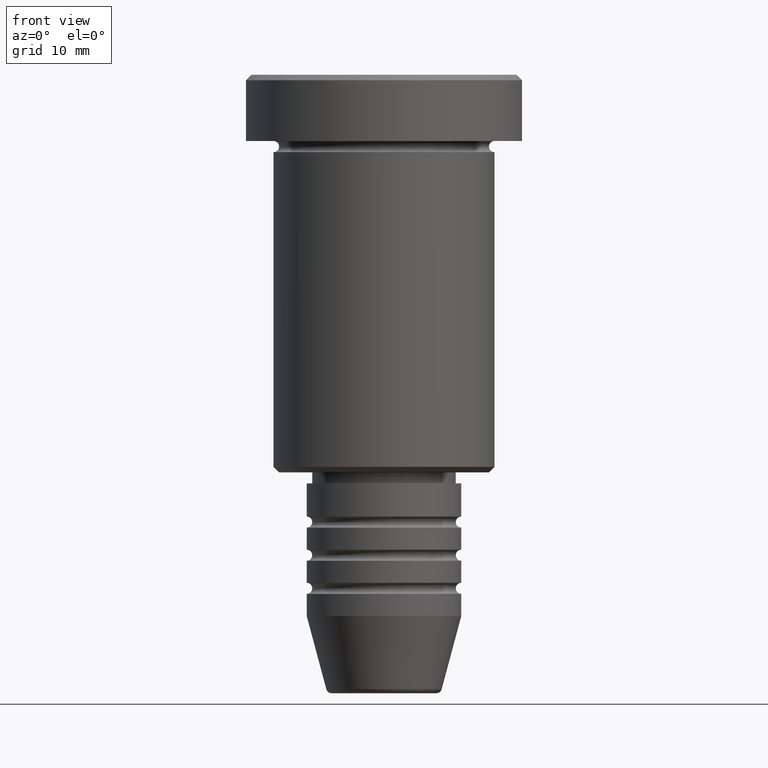
[diagram: clean part render]
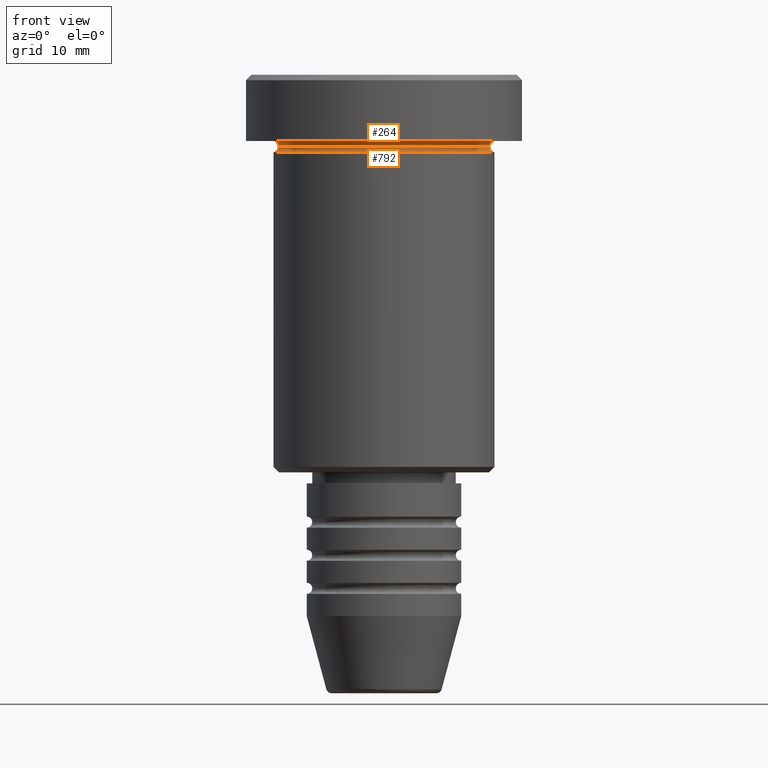
[diagram: same view with one multi-face feature highlighted, each face labeled with its STEP entity id]
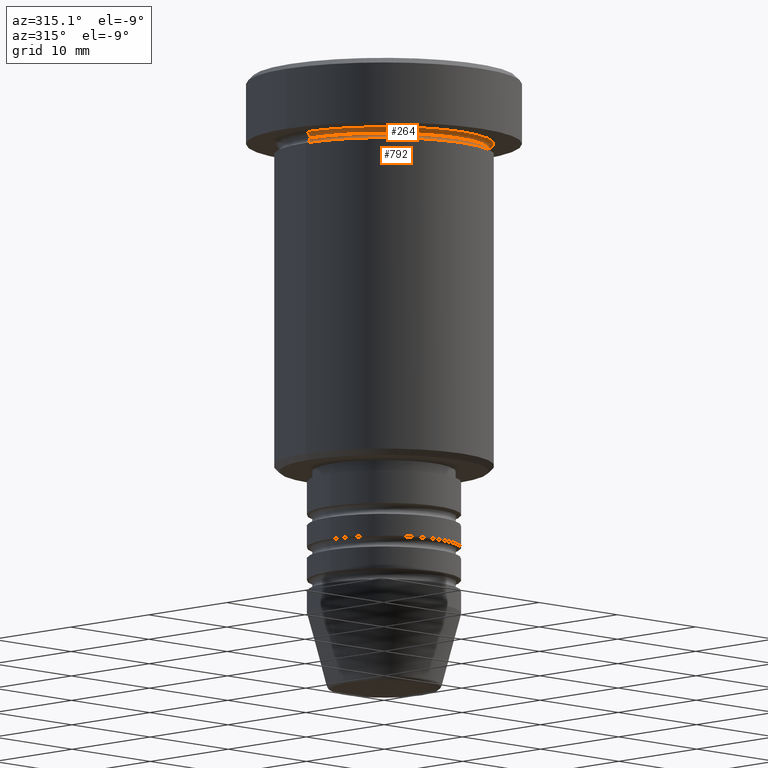
[diagram: same view with one multi-face feature highlighted, each face labeled with its STEP entity id]
A machine part, front view. The highlighted faces form ONE feature: a constant-radius fillet chain: 2 tangent blend faces with common blend radius 0.5 mm. The faces share edges in the B-rep.
A second angle (auxiliary view) of the same feature is appended — it is thin or edge-on in the first view.
Their STEP definitions:
[1] entity #264 (Torus):
#47 = CARTESIAN_POINT ( 'NONE',  ( 0.000000000000000000, 0.000000000000000000, -5.999999999999996447 ) ) ;
#87 = AXIS2_PLACEMENT_3D ( 'NONE', #47, #311, #133 ) ;
#122 = FACE_OUTER_BOUND ( 'NONE', #717, .T. ) ;
#133 = DIRECTION ( 'NONE',  ( -1.000000000000000000, 0.000000000000000000, 0.000000000000000000 ) ) ;
#177 = CARTESIAN_POINT ( 'NONE',  ( -9.500000000000000000, 1.194030629168669469E-15, -6.499999999999997335 ) ) ;
#180 = DIRECTION ( 'NONE',  ( -1.224646799147353207E-16, 1.000000000000000000, 0.000000000000000000 ) ) ;
#206 = CARTESIAN_POINT ( 'NONE',  ( -10.00000000000000000, 0.000000000000000000, -6.499999999999997335 ) ) ;
#248 = EDGE_CURVE ( 'NONE', #1068, #1179, #989, .T. ) ;
#264 = ADVANCED_FACE ( 'NONE', ( #122 ), #1174, .F. ) ;
#310 = DIRECTION ( 'NONE',  ( -1.000000000000000000, 0.000000000000000000, 0.000000000000000000 ) ) ;
#311 = DIRECTION ( 'NONE',  ( -0.000000000000000000, -0.000000000000000000, 1.000000000000000000 ) ) ;
#420 = EDGE_CURVE ( 'NONE', #1068, #553, #686, .T. ) ;
#426 = EDGE_CURVE ( 'NONE', #553, #1025, #436, .T. ) ;
#436 = CIRCLE ( 'NONE', #1064, 0.5000000000000004441 ) ;
#458 = CARTESIAN_POINT ( 'NONE',  ( 0.000000000000000000, 0.000000000000000000, -6.499999999999997335 ) ) ;
#461 = ORIENTED_EDGE ( 'NONE', *, *, #426, .T. ) ;
#467 = AXIS2_PLACEMENT_3D ( 'NONE', #1123, #680, #310 ) ;
#550 = DIRECTION ( 'NONE',  ( -1.000000000000000000, -1.224646799147353454E-16, 0.000000000000000000 ) ) ;
#553 = VERTEX_POINT ( 'NONE', #711 ) ;
#641 = DIRECTION ( 'NONE',  ( 1.000000000000000000, 0.000000000000000000, 0.000000000000000000 ) ) ;
#646 = AXIS2_PLACEMENT_3D ( 'NONE', #458, #1090, #641 ) ;
#661 = AXIS2_PLACEMENT_3D ( 'NONE', #206, #882, #775 ) ;
#679 = CARTESIAN_POINT ( 'NONE',  ( -10.00000000000000000, 0.000000000000000000, -5.999999999999996447 ) ) ;
#680 = DIRECTION ( 'NONE',  ( 0.000000000000000000, 0.000000000000000000, -1.000000000000000000 ) ) ;
#686 = CIRCLE ( 'NONE', #646, 9.500000000000000000 ) ;
#711 = CARTESIAN_POINT ( 'NONE',  ( 9.500000000000000000, 0.000000000000000000, -6.499999999999997335 ) ) ;
#717 = EDGE_LOOP ( 'NONE', ( #869, #461, #1096, #978 ) ) ;
#736 = EDGE_CURVE ( 'NONE', #1179, #1025, #948, .T. ) ;
#748 = CARTESIAN_POINT ( 'NONE',  ( 10.00000000000000000, 1.224646799147353256E-15, -5.999999999999996447 ) ) ;
#775 = DIRECTION ( 'NONE',  ( 0.000000000000000000, 0.000000000000000000, -1.000000000000000000 ) ) ;
#825 = CARTESIAN_POINT ( 'NONE',  ( 10.00000000000000000, 1.224646799147353256E-15, -6.499999999999997335 ) ) ;
#869 = ORIENTED_EDGE ( 'NONE', *, *, #420, .T. ) ;
#882 = DIRECTION ( 'NONE',  ( -0.000000000000000000, -1.000000000000000000, -0.000000000000000000 ) ) ;
#948 = CIRCLE ( 'NONE', #87, 10.00000000000000000 ) ;
#978 = ORIENTED_EDGE ( 'NONE', *, *, #248, .F. ) ;
#989 = CIRCLE ( 'NONE', #661, 0.5000000000000004441 ) ;
#1025 = VERTEX_POINT ( 'NONE', #748 ) ;
#1064 = AXIS2_PLACEMENT_3D ( 'NONE', #825, #180, #550 ) ;
#1068 = VERTEX_POINT ( 'NONE', #177 ) ;
#1090 = DIRECTION ( 'NONE',  ( -0.000000000000000000, -0.000000000000000000, 1.000000000000000000 ) ) ;
#1096 = ORIENTED_EDGE ( 'NONE', *, *, #736, .F. ) ;
#1123 = CARTESIAN_POINT ( 'NONE',  ( 0.000000000000000000, 0.000000000000000000, -6.499999999999997335 ) ) ;
#1174 = TOROIDAL_SURFACE ( 'NONE', #467, 10.00000000000000000, 0.5000000000000000000 ) ;
#1179 = VERTEX_POINT ( 'NONE', #679 ) ;
[2] entity #792 (Torus):
#19 = DIRECTION ( 'NONE',  ( -1.000000000000000000, 1.224646799147353454E-16, 0.000000000000000000 ) ) ;
#103 = ORIENTED_EDGE ( 'NONE', *, *, #420, .F. ) ;
#149 = CARTESIAN_POINT ( 'NONE',  ( 10.00000000000000000, 0.000000000000000000, -6.499999999999997335 ) ) ;
#177 = CARTESIAN_POINT ( 'NONE',  ( -9.500000000000000000, 1.194030629168669469E-15, -6.499999999999997335 ) ) ;
#229 = CARTESIAN_POINT ( 'NONE',  ( 0.000000000000000000, 0.000000000000000000, -6.499999999999997335 ) ) ;
#282 = ORIENTED_EDGE ( 'NONE', *, *, #451, .F. ) ;
#343 = VERTEX_POINT ( 'NONE', #499 ) ;
#420 = EDGE_CURVE ( 'NONE', #1068, #553, #686, .T. ) ;
#451 = EDGE_CURVE ( 'NONE', #553, #809, #1109, .T. ) ;
#455 = ORIENTED_EDGE ( 'NONE', *, *, #1125, .T. ) ;
#458 = CARTESIAN_POINT ( 'NONE',  ( 0.000000000000000000, 0.000000000000000000, -6.499999999999997335 ) ) ;
#477 = CARTESIAN_POINT ( 'NONE',  ( -10.00000000000000000, 1.224646799147353256E-15, -6.499999999999997335 ) ) ;
#483 = DIRECTION ( 'NONE',  ( -0.000000000000000000, -0.000000000000000000, 1.000000000000000000 ) ) ;
#491 = AXIS2_PLACEMENT_3D ( 'NONE', #863, #483, #852 ) ;
#499 = CARTESIAN_POINT ( 'NONE',  ( -10.00000000000000000, 1.224646799147353256E-15, -6.999999999999996447 ) ) ;
#516 = DIRECTION ( 'NONE',  ( 0.000000000000000000, 0.000000000000000000, -1.000000000000000000 ) ) ;
#529 = AXIS2_PLACEMENT_3D ( 'NONE', #149, #887, #516 ) ;
#549 = TOROIDAL_SURFACE ( 'NONE', #994, 10.00000000000000000, 0.5000000000000000000 ) ;
#553 = VERTEX_POINT ( 'NONE', #711 ) ;
#641 = DIRECTION ( 'NONE',  ( 1.000000000000000000, 0.000000000000000000, 0.000000000000000000 ) ) ;
#646 = AXIS2_PLACEMENT_3D ( 'NONE', #458, #1090, #641 ) ;
#648 = AXIS2_PLACEMENT_3D ( 'NONE', #477, #841, #19 ) ;
#686 = CIRCLE ( 'NONE', #646, 9.500000000000000000 ) ;
#690 = CIRCLE ( 'NONE', #491, 10.00000000000000000 ) ;
#708 = ORIENTED_EDGE ( 'NONE', *, *, #719, .T. ) ;
#711 = CARTESIAN_POINT ( 'NONE',  ( 9.500000000000000000, 0.000000000000000000, -6.499999999999997335 ) ) ;
#719 = EDGE_CURVE ( 'NONE', #343, #809, #690, .T. ) ;
#792 = ADVANCED_FACE ( 'NONE', ( #1142 ), #549, .F. ) ;
#809 = VERTEX_POINT ( 'NONE', #954 ) ;
#841 = DIRECTION ( 'NONE',  ( 1.224646799147353207E-16, 1.000000000000000000, 0.000000000000000000 ) ) ;
#852 = DIRECTION ( 'NONE',  ( 1.000000000000000000, 0.000000000000000000, 0.000000000000000000 ) ) ;
#863 = CARTESIAN_POINT ( 'NONE',  ( 0.000000000000000000, 0.000000000000000000, -6.999999999999996447 ) ) ;
#887 = DIRECTION ( 'NONE',  ( 0.000000000000000000, -1.000000000000000000, 0.000000000000000000 ) ) ;
#934 = CIRCLE ( 'NONE', #648, 0.5000000000000004441 ) ;
#954 = CARTESIAN_POINT ( 'NONE',  ( 10.00000000000000000, 0.000000000000000000, -6.999999999999996447 ) ) ;
#994 = AXIS2_PLACEMENT_3D ( 'NONE', #229, #1147, #1028 ) ;
#1028 = DIRECTION ( 'NONE',  ( 1.000000000000000000, 0.000000000000000000, 0.000000000000000000 ) ) ;
#1068 = VERTEX_POINT ( 'NONE', #177 ) ;
#1090 = DIRECTION ( 'NONE',  ( -0.000000000000000000, -0.000000000000000000, 1.000000000000000000 ) ) ;
#1109 = CIRCLE ( 'NONE', #529, 0.5000000000000004441 ) ;
#1125 = EDGE_CURVE ( 'NONE', #1068, #343, #934, .T. ) ;
#1142 = FACE_OUTER_BOUND ( 'NONE', #1151, .T. ) ;
#1147 = DIRECTION ( 'NONE',  ( -0.000000000000000000, -0.000000000000000000, 1.000000000000000000 ) ) ;
#1151 = EDGE_LOOP ( 'NONE', ( #103, #455, #708, #282 ) ) ;